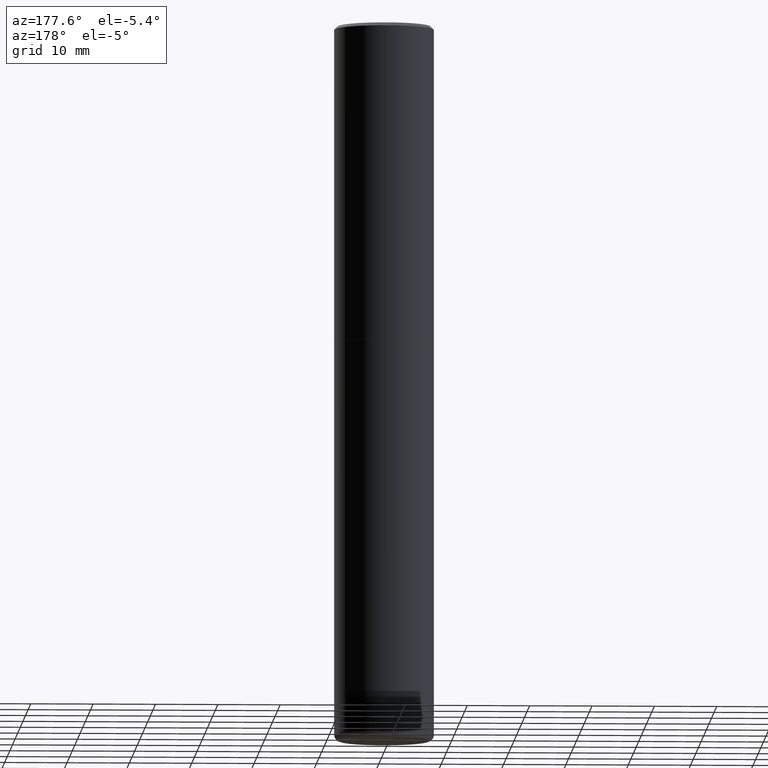
[diagram: clean part render]
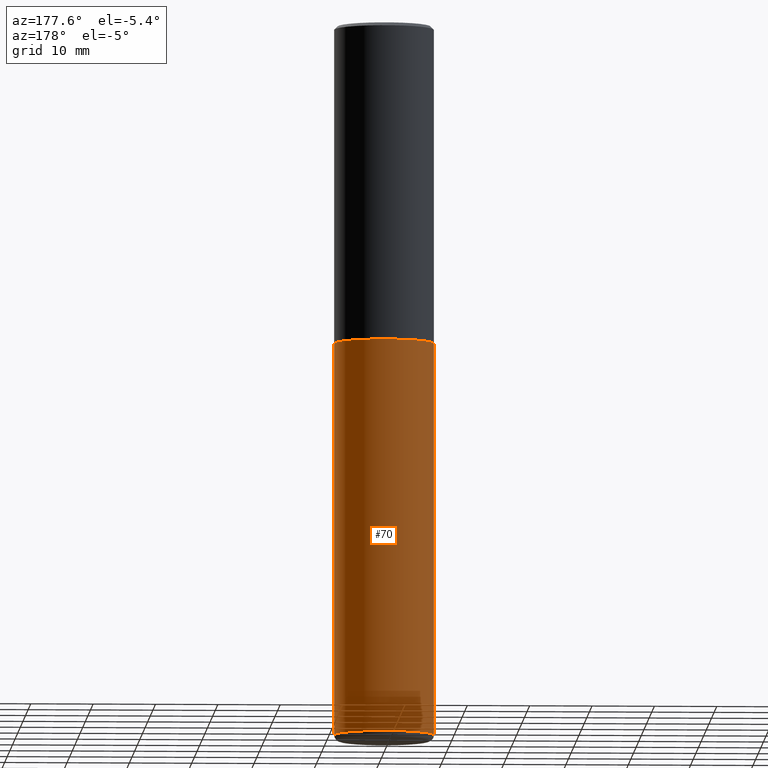
[diagram: same view with one face highlighted and labeled with its STEP entity id]
A machine part, auxiliary view. The second image highlights one B-rep face of the part: STEP entity #70.
In plain terms, the highlighted cylindrical surface (partial cylindrical patch) has radius 7.9997 mm, axis along (-0, 0, 1).
Its self-contained STEP definition (entity closure, byte-faithful):
#14 = ORIENTED_EDGE ( 'NONE', *, *, #111, .F. ) ;
#19 = VERTEX_POINT ( 'NONE', #192 ) ;
#23 = DIRECTION ( 'NONE',  ( -2.445468806185136597E-29, 3.491481338843145583E-15, 1.000000000000000000 ) ) ;
#30 = DIRECTION ( 'NONE',  ( -2.445468806185136877E-29, 3.491481338843145188E-15, 1.000000000000000000 ) ) ;
#33 = AXIS2_PLACEMENT_3D ( 'NONE', #379, #23, #385 ) ;
#47 = CARTESIAN_POINT ( 'NONE',  ( -0.3149500000000000077, 2.237854346276435590E-15, -1.549218606675782676E-29 ) ) ;
#56 = VECTOR ( 'NONE', #365, 39.37007874015748143 ) ;
#63 = VECTOR ( 'NONE', #30, 39.37007874015748143 ) ;
#70 = ADVANCED_FACE ( 'NONE', ( #259 ), #407, .T. ) ;
#83 = ORIENTED_EDGE ( 'NONE', *, *, #387, .F. ) ;
#105 = VERTEX_POINT ( 'NONE', #345 ) ;
#111 = EDGE_CURVE ( 'NONE', #304, #301, #315, .T. ) ;
#140 = ORIENTED_EDGE ( 'NONE', *, *, #231, .T. ) ;
#143 = AXIS2_PLACEMENT_3D ( 'NONE', #283, #377, #219 ) ;
#147 = CARTESIAN_POINT ( 'NONE',  ( 0.3149500000000000077, -9.209829475600440793E-15, -2.007899999999999796 ) ) ;
#153 = CARTESIAN_POINT ( 'NONE',  ( 0.3149500000000000077, -2.199284095337289871E-15, 1.535751875536930130E-29 ) ) ;
#155 = CARTESIAN_POINT ( 'NONE',  ( 0.3149500000000001743, -1.786975064033308982E-14, -4.488199999999999079 ) ) ;
#166 = DIRECTION ( 'NONE',  ( 1.000000000000000000, -6.982962677686269866E-15, 0.000000000000000000 ) ) ;
#191 = EDGE_CURVE ( 'NONE', #105, #19, #416, .T. ) ;
#192 = CARTESIAN_POINT ( 'NONE',  ( -0.3149500000000000077, -9.102651616353041816E-15, -2.007899999999999796 ) ) ;
#219 = DIRECTION ( 'NONE',  ( 1.000000000000000000, -6.982962677686263555E-15, 0.000000000000000000 ) ) ;
#229 = CARTESIAN_POINT ( 'NONE',  ( 1.097575309592012950E-28, -1.567046654499580152E-14, -4.488199999999999079 ) ) ;
#231 = EDGE_CURVE ( 'NONE', #304, #105, #361, .T. ) ;
#236 = AXIS2_PLACEMENT_3D ( 'NONE', #229, #413, #166 ) ;
#259 = FACE_OUTER_BOUND ( 'NONE', #339, .T. ) ;
#283 = CARTESIAN_POINT ( 'NONE',  ( 4.910256815939135870E-29, -7.010545380263151710E-15, -2.007899999999999796 ) ) ;
#301 = VERTEX_POINT ( 'NONE', #147 ) ;
#304 = VERTEX_POINT ( 'NONE', #155 ) ;
#315 = LINE ( 'NONE', #153, #63 ) ;
#324 = CIRCLE ( 'NONE', #143, 0.3149500000000000077 ) ;
#330 = ORIENTED_EDGE ( 'NONE', *, *, #191, .T. ) ;
#339 = EDGE_LOOP ( 'NONE', ( #140, #330, #83, #14 ) ) ;
#345 = CARTESIAN_POINT ( 'NONE',  ( -0.3149500000000001743, -1.343261219871936712E-14, -4.488199999999999079 ) ) ;
#361 = CIRCLE ( 'NONE', #236, 0.3149500000000000077 ) ;
#365 = DIRECTION ( 'NONE',  ( -2.445468806185136877E-29, 3.491481338843145188E-15, 1.000000000000000000 ) ) ;
#377 = DIRECTION ( 'NONE',  ( -2.445468806185136597E-29, 3.491481338843145583E-15, 1.000000000000000000 ) ) ;
#379 = CARTESIAN_POINT ( 'NONE',  ( 0.000000000000000000, 0.000000000000000000, 0.000000000000000000 ) ) ;
#385 = DIRECTION ( 'NONE',  ( 1.000000000000000000, -6.982962677686266711E-15, 4.876176775795936353E-29 ) ) ;
#387 = EDGE_CURVE ( 'NONE', #301, #19, #324, .T. ) ;
#407 = CYLINDRICAL_SURFACE ( 'NONE', #33, 0.3149500000000000077 ) ;
#413 = DIRECTION ( 'NONE',  ( -2.445468806185136597E-29, 3.491481338843145583E-15, 1.000000000000000000 ) ) ;
#416 = LINE ( 'NONE', #47, #56 ) ;